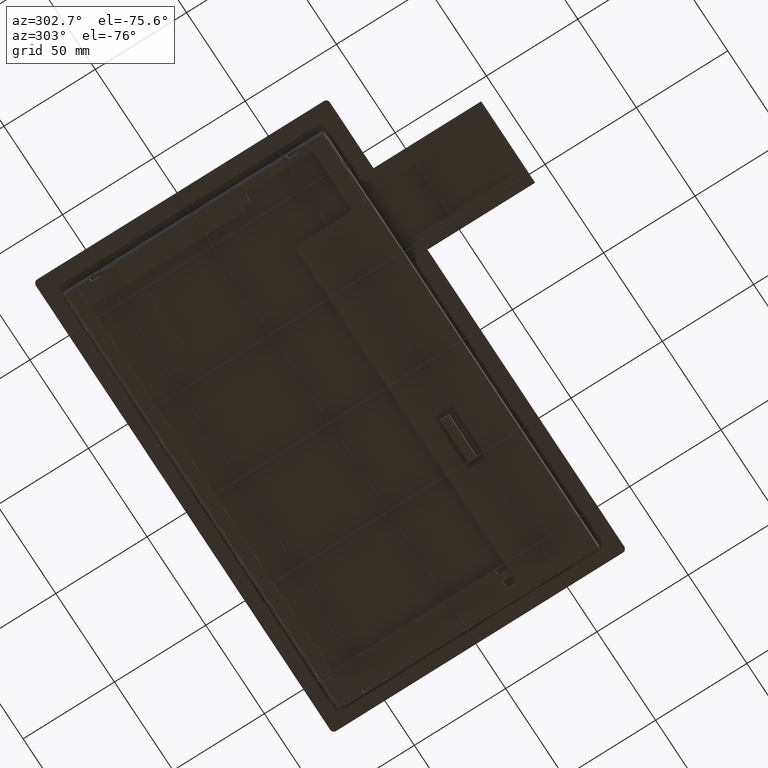
[diagram: clean part render]
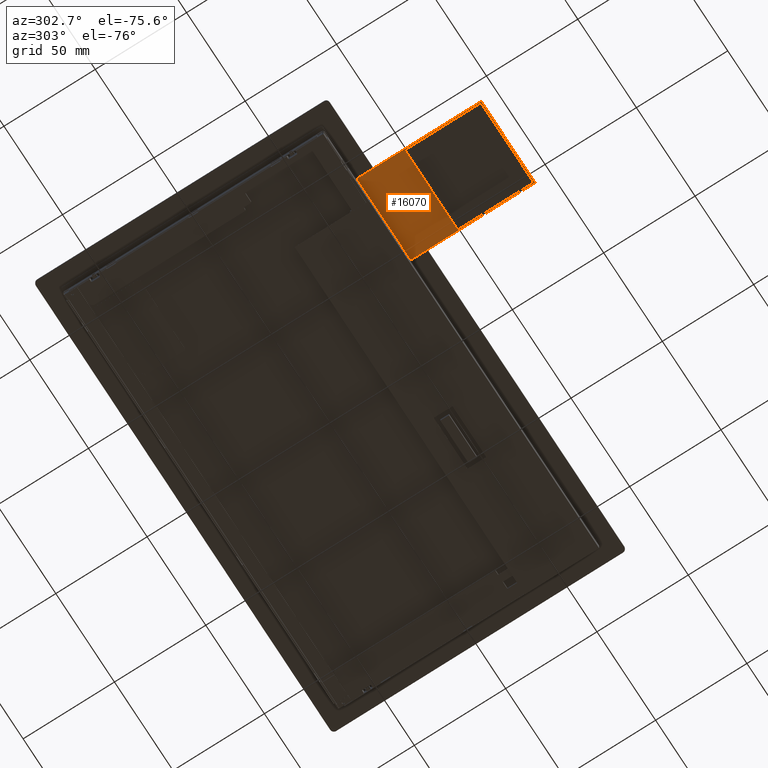
[diagram: same view with one face highlighted and labeled with its STEP entity id]
A machine part, auxiliary view. The second image highlights one B-rep face of the part: STEP entity #16070.
In plain terms, the highlighted planar face has unit normal (-0, 0, 1).
Its self-contained STEP definition (entity closure, byte-faithful):
#59=FACE_BOUND('',#1810,.T.);
#196=PLANE('',#16983);
#936=FACE_OUTER_BOUND('',#1809,.T.);
#1809=EDGE_LOOP('',(#11483,#11484,#11485,#11486,#11487,#11488,#11489,#11490));
#1810=EDGE_LOOP('',(#11491,#11492,#11493,#11494));
#2778=LINE('',#22597,#4899);
#2782=LINE('',#22605,#4903);
#2828=LINE('',#22709,#4949);
#2858=LINE('',#22773,#4979);
#2860=LINE('',#22777,#4981);
#2862=LINE('',#22781,#4983);
#2864=LINE('',#22784,#4985);
#2865=LINE('',#22788,#4986);
#2866=LINE('',#22792,#4987);
#4899=VECTOR('',#18196,10.);
#4903=VECTOR('',#18200,10.);
#4949=VECTOR('',#18308,69.4);
#4979=VECTOR('',#18350,45.);
#4981=VECTOR('',#18354,41.5);
#4983=VECTOR('',#18358,45.);
#4985=VECTOR('',#18362,41.5);
#4986=VECTOR('',#18367,69.4);
#4987=VECTOR('',#18370,45.4);
#6958=CIRCLE('',#16984,0.55);
#6959=CIRCLE('',#16985,0.299999999999997);
#6960=CIRCLE('',#16986,0.300000000000001);
#7260=VERTEX_POINT('',#22595);
#7261=VERTEX_POINT('',#22596);
#7264=VERTEX_POINT('',#22603);
#7265=VERTEX_POINT('',#22604);
#7292=VERTEX_POINT('',#22708);
#7319=VERTEX_POINT('',#22770);
#7320=VERTEX_POINT('',#22772);
#7321=VERTEX_POINT('',#22776);
#7322=VERTEX_POINT('',#22780);
#7323=VERTEX_POINT('',#22787);
#7324=VERTEX_POINT('',#22789);
#7325=VERTEX_POINT('',#22791);
#8855=EDGE_CURVE('',#7260,#7261,#2778,.T.);
#8859=EDGE_CURVE('',#7264,#7265,#2782,.T.);
#8909=EDGE_CURVE('',#7260,#7292,#2828,.T.);
#8942=EDGE_CURVE('',#7320,#7319,#2858,.T.);
#8944=EDGE_CURVE('',#7321,#7320,#2860,.T.);
#8946=EDGE_CURVE('',#7322,#7321,#2862,.T.);
#8948=EDGE_CURVE('',#7319,#7322,#2864,.T.);
#8949=EDGE_CURVE('',#7264,#7261,#6958,.T.);
#8950=EDGE_CURVE('',#7323,#7265,#2865,.T.);
#8951=EDGE_CURVE('',#7324,#7323,#6959,.T.);
#8952=EDGE_CURVE('',#7325,#7324,#2866,.T.);
#8953=EDGE_CURVE('',#7292,#7325,#6960,.T.);
#11483=ORIENTED_EDGE('',*,*,#8855,.T.);
#11484=ORIENTED_EDGE('',*,*,#8949,.F.);
#11485=ORIENTED_EDGE('',*,*,#8859,.T.);
#11486=ORIENTED_EDGE('',*,*,#8950,.F.);
#11487=ORIENTED_EDGE('',*,*,#8951,.F.);
#11488=ORIENTED_EDGE('',*,*,#8952,.F.);
#11489=ORIENTED_EDGE('',*,*,#8953,.F.);
#11490=ORIENTED_EDGE('',*,*,#8909,.F.);
#11491=ORIENTED_EDGE('',*,*,#8944,.T.);
#11492=ORIENTED_EDGE('',*,*,#8942,.T.);
#11493=ORIENTED_EDGE('',*,*,#8948,.T.);
#11494=ORIENTED_EDGE('',*,*,#8946,.T.);
#16070=ADVANCED_FACE('',(#936,#59),#196,.F.);
#16983=AXIS2_PLACEMENT_3D('',#22785,#18363,#18364);
#16984=AXIS2_PLACEMENT_3D('',#22786,#18365,#18366);
#16985=AXIS2_PLACEMENT_3D('',#22790,#18368,#18369);
#16986=AXIS2_PLACEMENT_3D('',#22793,#18371,#18372);
#18196=DIRECTION('',(1.,5.55111512312586E-17,1.22309489444525E-16));
#18200=DIRECTION('',(1.,5.55111512312586E-17,1.22309489444525E-16));
#18308=DIRECTION('',(5.55111512312586E-17,-1.,2.86113138723092E-17));
#18350=DIRECTION('',(-1.,-5.55111512312586E-17,-1.22309489444525E-16));
#18354=DIRECTION('',(-5.55111512312586E-17,1.,-2.86113138723092E-17));
#18358=DIRECTION('',(1.,5.55111512312586E-17,1.22309489444525E-16));
#18362=DIRECTION('',(5.55111512312586E-17,-1.,2.86113138723092E-17));
#18363=DIRECTION('center_axis',(-1.22309489444525E-16,2.86113138723092E-17,
1.));
#18364=DIRECTION('ref_axis',(1.,5.55111512312586E-17,1.22309489444525E-16));
#18365=DIRECTION('center_axis',(1.22309489444524E-16,6.95435136381396E-15,
-1.));
#18366=DIRECTION('ref_axis',(1.,5.55111512312586E-17,1.22309489444525E-16));
#18367=DIRECTION('',(-5.55111512312586E-17,1.,-2.86113138723092E-17));
#18368=DIRECTION('center_axis',(-1.22309489444525E-16,2.86113138723092E-17,
1.));
#18369=DIRECTION('ref_axis',(1.,5.55111512312586E-17,1.22309489444525E-16));
#18370=DIRECTION('',(1.,5.55111512312586E-17,1.22309489444525E-16));
#18371=DIRECTION('center_axis',(-1.22309489444525E-16,2.86113138723092E-17,
1.));
#18372=DIRECTION('ref_axis',(1.,5.55111512312586E-17,1.22309489444525E-16));
#22595=CARTESIAN_POINT('',(-88.5000000000002,-71.65,-1.34999999999955));
#22596=CARTESIAN_POINT('',(-67.8791287856252,-71.65,-1.34999999999955));
#22597=CARTESIAN_POINT('',(-91.5000000000001,-71.65,-1.34999999999955));
#22603=CARTESIAN_POINT('',(-67.4208712143751,-71.65,-1.34999999999955));
#22604=CARTESIAN_POINT('',(-42.5000000000002,-71.65,-1.34999999999955));
#22605=CARTESIAN_POINT('',(-91.5000000000001,-71.65,-1.34999999999955));
#22708=CARTESIAN_POINT('',(-88.5000000000002,-139.450000000397,-1.34999999999955));
#22709=CARTESIAN_POINT('',(-88.5000000000002,-70.0500000003973,-1.34999999999955));
#22770=CARTESIAN_POINT('',(-88.0000000000002,-97.7500000003973,-1.34999999999955));
#22772=CARTESIAN_POINT('',(-43.0000000000002,-97.7500000003973,-1.34999999999955));
#22773=CARTESIAN_POINT('',(-43.0000000000002,-97.7500000003973,-1.34999999999955));
#22776=CARTESIAN_POINT('',(-43.0000000000002,-139.250000000397,-1.34999999999955));
#22777=CARTESIAN_POINT('',(-43.0000000000002,-139.250000000397,-1.34999999999955));
#22780=CARTESIAN_POINT('',(-88.0000000000002,-139.250000000397,-1.34999999999955));
#22781=CARTESIAN_POINT('',(-88.0000000000002,-139.250000000397,-1.34999999999955));
#22784=CARTESIAN_POINT('',(-88.0000000000002,-97.7500000003973,-1.34999999999955));
#22785=CARTESIAN_POINT('Origin',(-65.5000000000002,-139.750000000397,-1.34999999999955));
#22786=CARTESIAN_POINT('Origin',(-67.6500000000002,-71.150000000402,-1.34999999999955));
#22787=CARTESIAN_POINT('',(-42.5000000000002,-139.450000000397,-1.34999999999955));
#22788=CARTESIAN_POINT('',(-42.5000000000002,-139.450000000397,-1.34999999999955));
#22789=CARTESIAN_POINT('',(-42.8000000000002,-139.750000000397,-1.34999999999955));
#22790=CARTESIAN_POINT('Origin',(-42.8000000000002,-139.450000000397,-1.34999999999955));
#22791=CARTESIAN_POINT('',(-88.2000000000002,-139.750000000397,-1.34999999999955));
#22792=CARTESIAN_POINT('',(-88.2000000000002,-139.750000000397,-1.34999999999955));
#22793=CARTESIAN_POINT('Origin',(-88.2000000000002,-139.450000000397,-1.34999999999955));